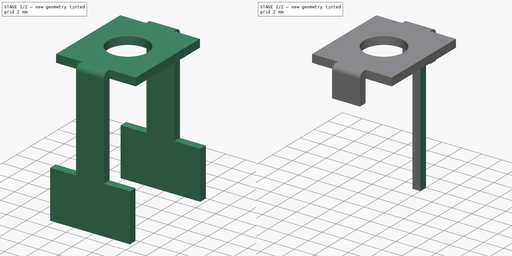
[diagram: build sequence overview — one tinted view per stage of 2, left to right]
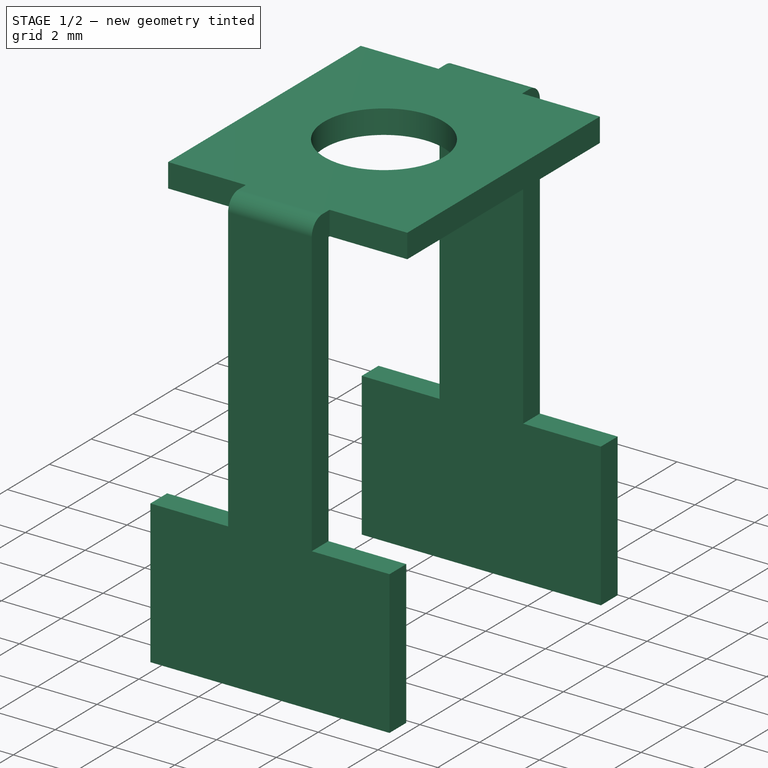
[diagram: stage 1 of 2 — iso view after this stage's code; geometry added in this stage tinted green]
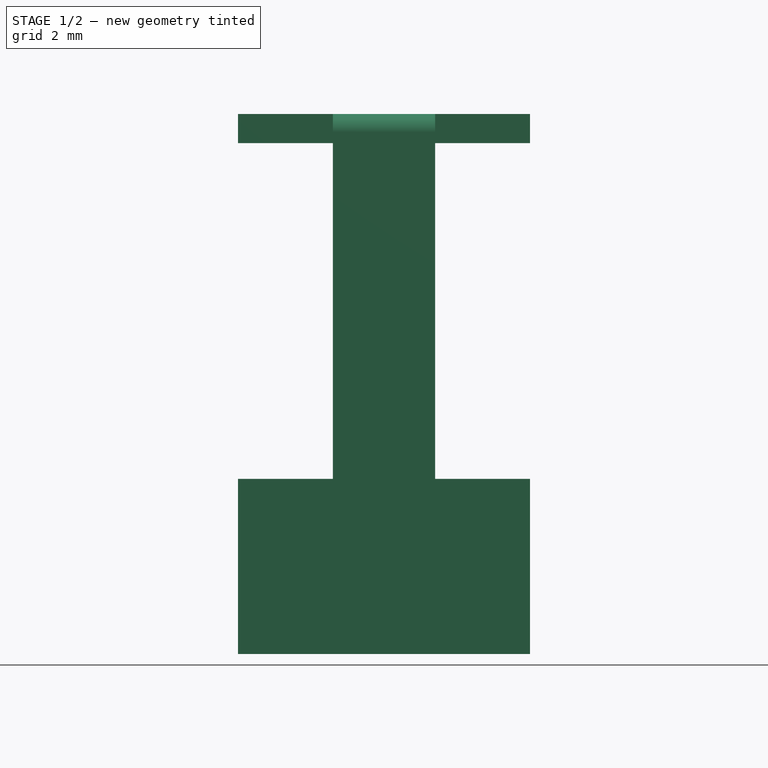
[diagram: stage 1 of 2 — front view after this stage's code; geometry added in this stage tinted green]
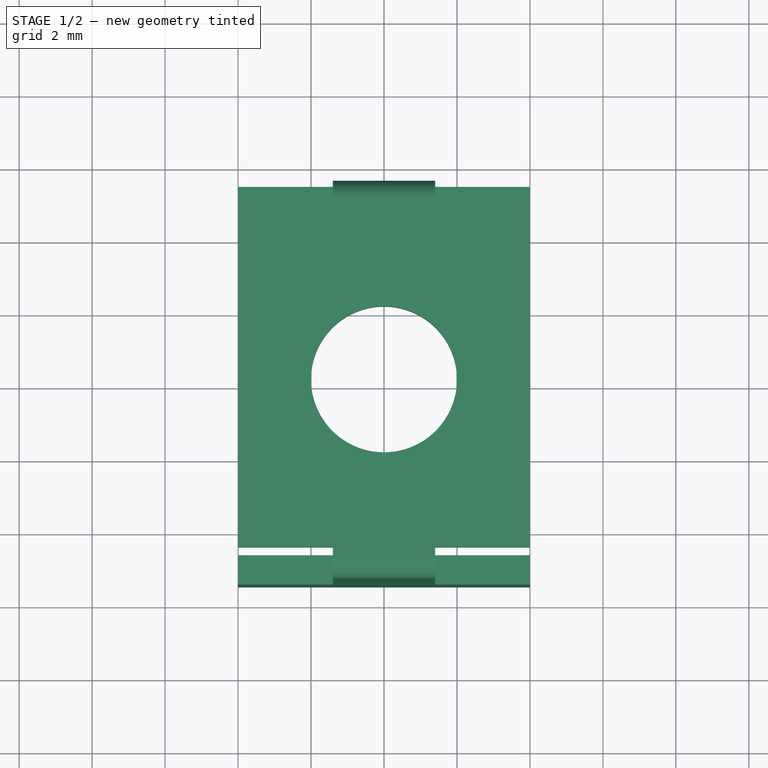
[diagram: stage 1 of 2 — top view after this stage's code; geometry added in this stage tinted green]
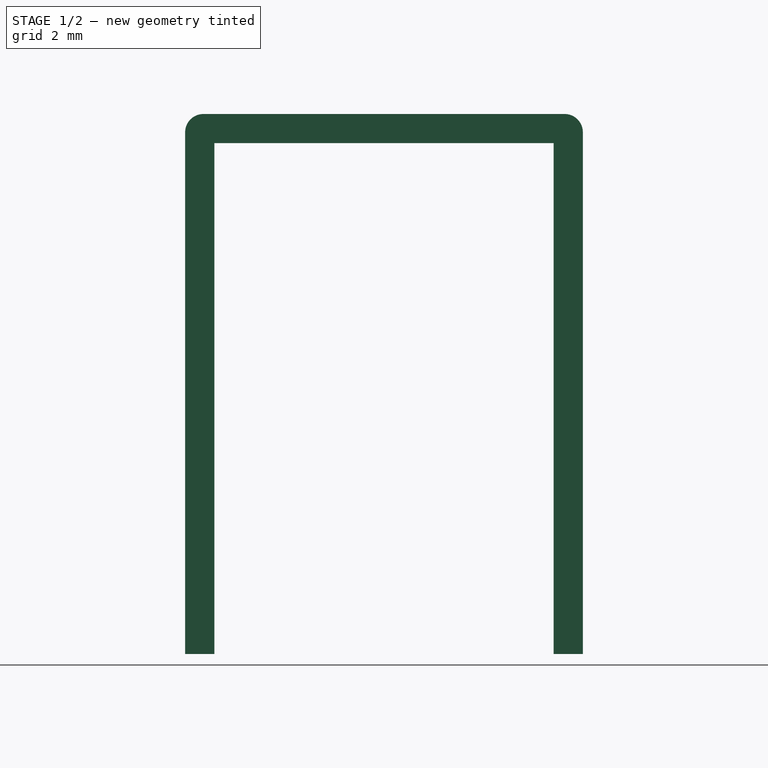
[diagram: stage 1 of 2 — right view after this stage's code; geometry added in this stage tinted green]
FCSTD DOCUMENT  (FreeCAD 0.19R23058 (Git))
Label: bottom_contact
License: All rights reserved
LicenseURL: http://en.wikipedia.org/wiki/All_rights_reserved
objects: Sketcher::SketchObject×4, PartDesign::Pocket×3, PartDesign::Line×3, PartDesign::Pad×1, PartDesign::Body×1
note: 16 computed .brp shape members not serialized (recipe doc carries the construction recipe); baked Part::Feature solids carry a one-line shape summary decoded from their .brp

FEATURE [Sketcher::SketchObject] Sketch
  MapMode = 5
  Placement = pos=(0,0,0) rot=(0.57735,0.57735,0.57735;2.0944rad)
  Support = -> [YZ_Plane]
  sketch-geometry (12):
    g0: LineSegment StartX=-5.45 StartY=-14.8 StartZ=0 EndX=-5.45 EndY=-0.5 EndZ=0
    g1: LineSegment StartX=-4.95 StartY=0 StartZ=0 EndX=4.95 EndY=0 EndZ=0
    g2: LineSegment StartX=5.45 StartY=-0.5 StartZ=0 EndX=5.45 EndY=-14.8 EndZ=0
    g3: LineSegment StartX=5.45 StartY=-14.8 StartZ=0 EndX=4.65 EndY=-14.8 EndZ=0
    g4: LineSegment StartX=4.65 StartY=-14.8 StartZ=0 EndX=4.65 EndY=-0.8 EndZ=0
    g5: LineSegment StartX=4.65 StartY=-0.8 StartZ=0 EndX=-4.65 EndY=-0.8 EndZ=0
    g6: LineSegment StartX=-4.65 StartY=-0.8 StartZ=0 EndX=-4.65 EndY=-14.8 EndZ=0
    g7: LineSegment StartX=-4.65 StartY=-14.8 StartZ=0 EndX=-5.45 EndY=-14.8 EndZ=0
    g8: ArcOfCircle CenterX=-4.95 CenterY=-0.5 CenterZ=0 NormalX=0 NormalY=0 NormalZ=1 AngleXU=0 Radius=0.5 StartAngle=1.5708 EndAngle=3.14159
    g9: ArcOfCircle CenterX=4.95 CenterY=-0.5 CenterZ=0 NormalX=0 NormalY=0 NormalZ=1 AngleXU=0 Radius=0.5 StartAngle=0 EndAngle=1.5708
    g10: LineSegment [constr] StartX=-4.95 StartY=-0.5 StartZ=0 EndX=-4.65 EndY=-0.8 EndZ=0
    g11: LineSegment [constr] StartX=4.65 StartY=-0.8 StartZ=0 EndX=4.95 EndY=-0.5 EndZ=0
  constraints (31):
    c: Vertical(g0)
    c: Vertical(g2)
    c: Coincident(g2,g3)
    c: Coincident(g3,g4)
    c: Vertical(g4)
    c: Coincident(g4,g5)
    c: Horizontal(g5)
    c: Coincident(g5,g6)
    c: Vertical(g6)
    c: Coincident(g6,g7)
    c: Coincident(g7,g0)
    c: Horizontal(g7)
    c: Horizontal(g3)
    c: DistanceX(g7,g7) = 0.8
    c: DistanceX(g5,g5) = 9.3
    c: DistanceY(g4,g4) = 14
    c: Equal(g4,g6)
    c: Tangent(g0,g8) = 1.5708
    c: Tangent(g1,g8) = 1.5708
    c: Tangent(g1,g9) = 1.5708
    c: Tangent(g2,g9) = 1.5708
    c: Equal(g8,g9)
    c: PointOnObject(g1,g-1)
    c: Symmetric(g1,g1,g-2)
    c: Radius(g8) = 0.5
    c: Coincident(g10,g8)
    c: Coincident(g10,g5)
    c: Coincident(g11,g4)
    c: Coincident(g11,g9)
    c: Angle(g5,g10) = 2.35619
    c: Equal(g10,g11)
FEATURE [PartDesign::Pad] Pad
  Direction = (1,1,1)
  Length = 8
  Length2 = 100
  Midplane = true
  Placement = pos=(0,0,0) rot=(0.57735,0.57735,0.57735;2.0944rad)
  Profile = -> Sketch
  Type = 0
FEATURE [Sketcher::SketchObject] Sketch001
  ExternalGeometry = -> [Pad]
  MapMode = 5
  Placement = pos=(0,0,0) rot=(0,0,-1;1.5708rad)
  Support = -> [Pad]
  sketch-geometry (21):
    g0: Circle CenterX=0 CenterY=0 CenterZ=0 NormalX=0 NormalY=0 NormalZ=1 AngleXU=0 Radius=2
    g1: LineSegment StartX=-5.45 StartY=4 StartZ=0 EndX=-4.6 EndY=4 EndZ=0
    g2: LineSegment StartX=-4.6 StartY=4 StartZ=0 EndX=-4.6 EndY=1.4 EndZ=0
    g3: LineSegment StartX=-4.6 StartY=1.4 StartZ=0 EndX=-5.45 EndY=1.4 EndZ=0
    g4: LineSegment StartX=-5.45 StartY=1.4 StartZ=0 EndX=-5.45 EndY=4 EndZ=0
    g5: LineSegment StartX=-5.45 StartY=-1.4 StartZ=0 EndX=-4.6 EndY=-1.4 EndZ=0
    g6: LineSegment StartX=-4.6 StartY=-1.4 StartZ=0 EndX=-4.6 EndY=-4 EndZ=0
    g7: LineSegment StartX=-4.6 StartY=-4 StartZ=0 EndX=-5.45 EndY=-4 EndZ=0
    g8: LineSegment StartX=-5.45 StartY=-4 StartZ=0 EndX=-5.45 EndY=-1.4 EndZ=0
    g9: LineSegment StartX=4.6 StartY=4 StartZ=0 EndX=5.45 EndY=4 EndZ=0
    g10: LineSegment StartX=5.45 StartY=4 StartZ=0 EndX=5.45 EndY=1.4 EndZ=0
    g11: LineSegment StartX=5.45 StartY=1.4 StartZ=0 EndX=4.6 EndY=1.4 EndZ=0
    g12: LineSegment StartX=4.6 StartY=1.4 StartZ=0 EndX=4.6 EndY=4 EndZ=0
    g13: LineSegment StartX=4.6 StartY=-1.4 StartZ=0 EndX=5.45 EndY=-1.4 EndZ=0
    g14: LineSegment StartX=5.45 StartY=-1.4 StartZ=0 EndX=5.45 EndY=-4 EndZ=0
    g15: LineSegment StartX=5.45 StartY=-4 StartZ=0 EndX=4.6 EndY=-4 EndZ=0
    g16: LineSegment StartX=4.6 StartY=-4 StartZ=0 EndX=4.6 EndY=-1.4 EndZ=0
    g17: LineSegment [constr] StartX=-4.6 StartY=1.4 StartZ=0 EndX=4.6 EndY=1.4 EndZ=0
    g18: LineSegment [constr] StartX=4.6 StartY=1.4 StartZ=0 EndX=4.6 EndY=-1.4 EndZ=0
    g19: LineSegment [constr] StartX=4.6 StartY=-1.4 StartZ=0 EndX=-4.6 EndY=-1.4 EndZ=0
    g20: LineSegment [constr] StartX=-4.6 StartY=-1.4 StartZ=0 EndX=-4.6 EndY=1.4 EndZ=0
  constraints (55):
    c: Coincident(g0,g-1)
    c: Radius(g0) = 2
    c: Coincident(g1,g2)
    c: Coincident(g2,g3)
    c: Coincident(g3,g4)
    c: Coincident(g4,g1)
    c: Horizontal(g1)
    c: Horizontal(g3)
    c: Vertical(g2)
    c: Vertical(g4)
    c: Coincident(g5,g6)
    c: Coincident(g6,g7)
    c: Coincident(g7,g8)
    c: Coincident(g8,g5)
    c: Horizontal(g5)
    c: Horizontal(g7)
    c: Vertical(g6)
    c: Vertical(g8)
    c: Coincident(g9,g10)
    c: Coincident(g10,g11)
    c: Coincident(g11,g12)
    c: Coincident(g12,g9)
    c: Horizontal(g9)
    c: Horizontal(g11)
    c: Vertical(g10)
    c: Vertical(g12)
    c: Coincident(g13,g14)
    c: Coincident(g14,g15)
    c: Coincident(g15,g16)
    c: Coincident(g16,g13)
    c: Horizontal(g13)
    c: Horizontal(g15)
    c: Vertical(g14)
    c: Vertical(g16)
    c: Coincident(g17,g18)
    c: Coincident(g18,g19)
    c: Coincident(g19,g20)
    c: Coincident(g20,g17)
    c: Horizontal(g19)
    c: Vertical(g18)
    c: Coincident(g17,g2)
    c: Coincident(g18,g13)
    c: Coincident(g17,g11)
    c: Coincident(g5,g19)
    c: Symmetric(g2,g11,g-2)
    c: Symmetric(g2,g5,g-1)
    c: DistanceY(g20,g20) = 2.8
    c: DistanceX(g17,g17) = 9.2
    c: Equal(g3,g5)
    c: Equal(g5,g13)
    c: Equal(g13,g11)
    c: Equal(g2,g12)
    c: Equal(g12,g16)
    c: Equal(g16,g6)
    c: Coincident(g1,g-3)
FEATURE [PartDesign::Pocket] Pocket
  BaseFeature = -> Pad
  Length = 10
  Length2 = 100
  Placement = pos=(0,0,0) rot=(0.57735,0.57735,0.57735;2.0944rad)
  Profile = -> Sketch001
  Type = 0
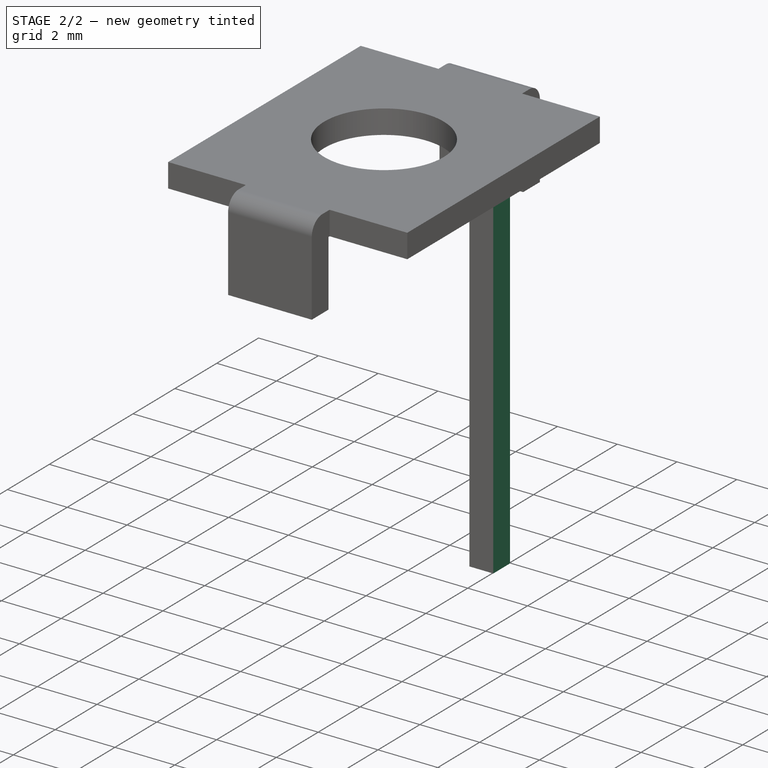
[diagram: stage 2 of 2 — iso view after this stage's code; geometry added in this stage tinted green]
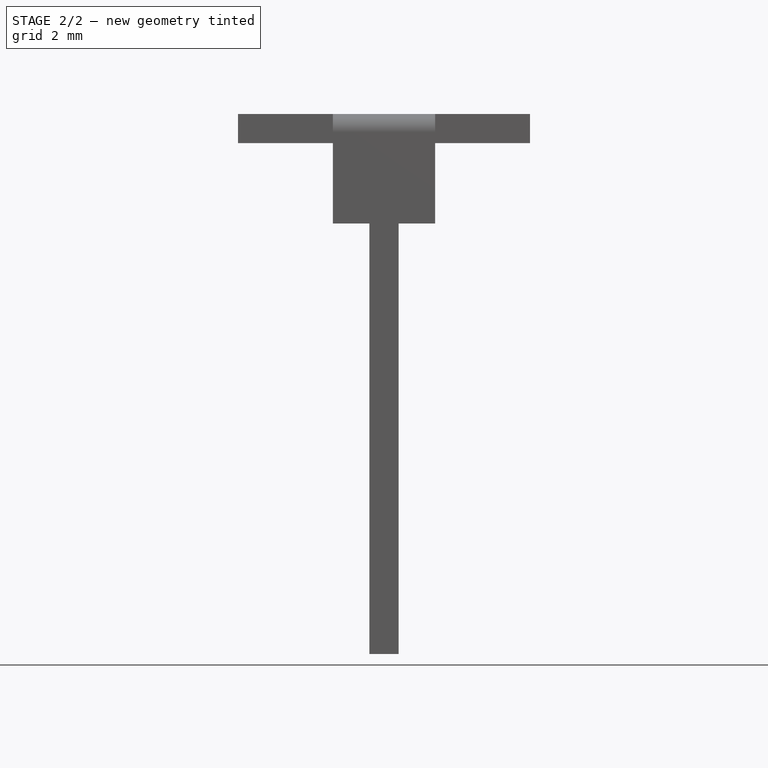
[diagram: stage 2 of 2 — front view after this stage's code; geometry added in this stage tinted green]
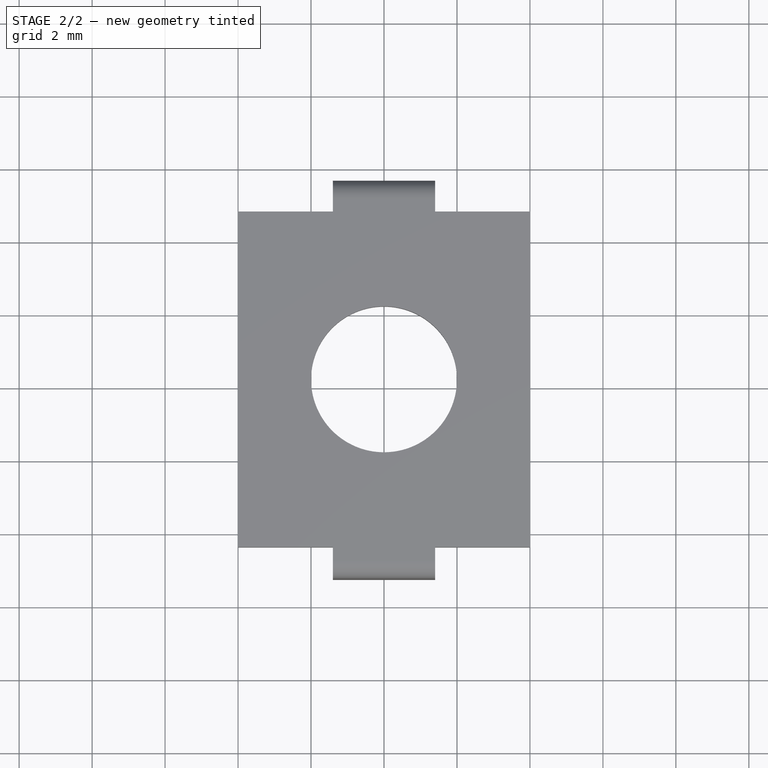
[diagram: stage 2 of 2 — top view after this stage's code; geometry added in this stage tinted green]
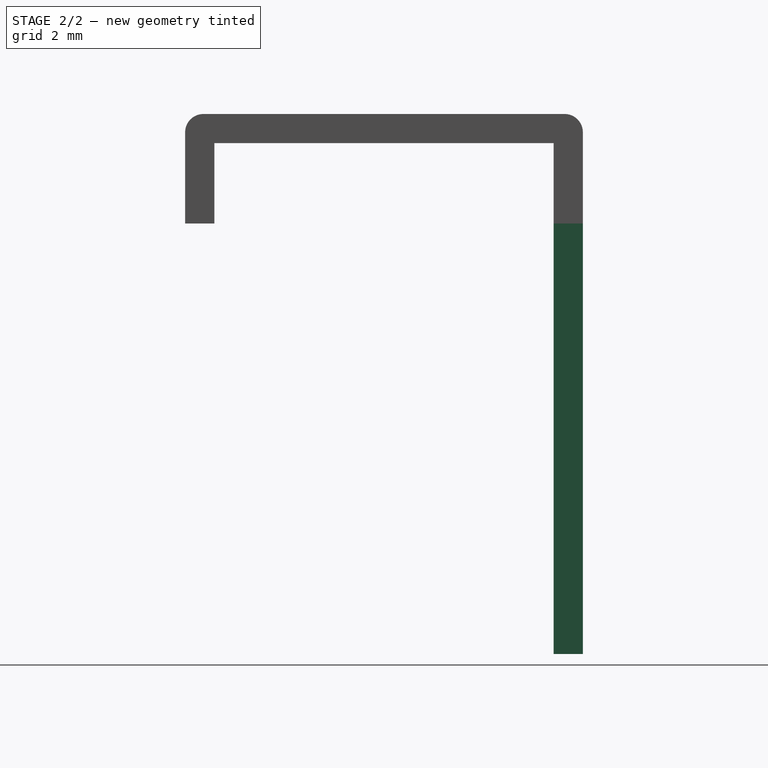
[diagram: stage 2 of 2 — right view after this stage's code; geometry added in this stage tinted green]
FEATURE [Sketcher::SketchObject] Sketch002
  ExternalGeometry = -> [Pocket]
  MapMode = 5
  Placement = pos=(-2.4e-15,-5.45,1.2e-15) rot=(-0.57735,-0.57735,0.57735;4.18879rad)
  Support = -> [Pocket]
  sketch-geometry (10):
    g0: LineSegment StartX=3 StartY=4 StartZ=0 EndX=14.8 EndY=4 EndZ=0
    g1: LineSegment StartX=14.8 StartY=4 StartZ=0 EndX=14.8 EndY=0.4 EndZ=0
    g2: LineSegment StartX=14.8 StartY=0.4 StartZ=0 EndX=3 EndY=0.4 EndZ=0
    g3: LineSegment StartX=3 StartY=0.4 StartZ=0 EndX=3 EndY=4 EndZ=0
    g4: LineSegment StartX=3 StartY=-0.4 StartZ=0 EndX=14.8 EndY=-0.4 EndZ=0
    g5: LineSegment StartX=14.8 StartY=-0.4 StartZ=0 EndX=14.8 EndY=-4 EndZ=0
    g6: LineSegment StartX=14.8 StartY=-4 StartZ=0 EndX=3 EndY=-4 EndZ=0
    g7: LineSegment StartX=3 StartY=-4 StartZ=0 EndX=3 EndY=-0.4 EndZ=0
    g8: LineSegment [constr] StartX=3 StartY=0.4 StartZ=0 EndX=3 EndY=-0.4 EndZ=0
    g9: LineSegment [constr] StartX=14.8 StartY=0.4 StartZ=0 EndX=14.8 EndY=-0.4 EndZ=0
  constraints (26):
    c: Coincident(g0,g1)
    c: Coincident(g1,g2)
    c: Coincident(g2,g3)
    c: Coincident(g3,g0)
    c: Horizontal(g0)
    c: Horizontal(g2)
    c: Vertical(g1)
    c: Vertical(g3)
    c: Coincident(g4,g5)
    c: Coincident(g5,g6)
    c: Coincident(g6,g7)
    c: Coincident(g7,g4)
    c: Horizontal(g4)
    c: Horizontal(g6)
    c: Vertical(g5)
    c: Vertical(g7)
    c: Coincident(g8,g2)
    c: Coincident(g8,g4)
    c: Symmetric(g4,g2,g-1)
    c: Coincident(g9,g1)
    c: Coincident(g9,g4)
    c: Vertical(g9)
    c: DistanceY(g9,g9) = 0.8
    c: Equal(g1,g5)
    c: Coincident(g-3,g0)
    c: DistanceX(g-1,g0) = 3
FEATURE [PartDesign::Pocket] Pocket001
  BaseFeature = -> Pocket
  Length = 15
  Length2 = 100
  Placement = pos=(0,0,0) rot=(0.57735,0.57735,0.57735;2.0944rad)
  Profile = -> Sketch002
  Type = 0
FEATURE [Sketcher::SketchObject] Sketch003
  ExternalGeometry = -> [Pocket001]
  MapMode = 5
  Placement = pos=(-2.4e-15,-5.45,1.2e-15) rot=(-0.57735,-0.57735,0.57735;4.18879rad)
  Support = -> [Pocket001]
  sketch-geometry (4):
    g0: LineSegment StartX=3 StartY=0.4 StartZ=0 EndX=14.8 EndY=0.4 EndZ=0
    g1: LineSegment StartX=14.8 StartY=0.4 StartZ=0 EndX=14.8 EndY=-0.4 EndZ=0
    g2: LineSegment StartX=14.8 StartY=-0.4 StartZ=0 EndX=3 EndY=-0.4 EndZ=0
    g3: LineSegment StartX=3 StartY=-0.4 StartZ=0 EndX=3 EndY=0.4 EndZ=0
  constraints (10):
    c: Coincident(g0,g1)
    c: Coincident(g1,g2)
    c: Coincident(g2,g3)
    c: Coincident(g3,g0)
    c: Horizontal(g0)
    c: Horizontal(g2)
    c: Vertical(g1)
    c: Vertical(g3)
    c: Coincident(g0,g-3)
    c: Coincident(g1,g-4)
FEATURE [PartDesign::Pocket] Pocket002
  BaseFeature = -> Pocket001
  Length = 5
  Length2 = 100
  Placement = pos=(0,0,0) rot=(0.57735,0.57735,0.57735;2.0944rad)
  Profile = -> Sketch003
  Type = 0
FEATURE [PartDesign::Line] HoleAxis_1  label="Screw_F"
  AttacherType = Attacher::AttachEngineLine
  Length = 5.63627
  MapMode = 19
  Placement = pos=(0,0,0) rot=(0,0,-1;1.5708rad)
  ResizeMode = 1
  Support = -> [Pocket002]
FEATURE [PartDesign::Line] HoleAxis_2  label="Screw_R"
  AttacherType = Attacher::AttachEngineLine
  Length = 5.63627
  MapMode = 19
  Placement = pos=(3e-16,-4e-16,-0.8) rot=(0,0,-1;1.5708rad)
  ResizeMode = 1
  Support = -> [Pocket002]
FEATURE [PartDesign::Line] Contact
  AttacherType = Attacher::AttachEngineLine
  AttachmentOffset = pos=(0,0,-9.3) rot=(0,0,1;0rad)
  Length = 1
  MapMode = 42
  Placement = pos=(-3.4e-15,5.05,-9.3) rot=(0,0,1;0rad)
  ResizeMode = 1
  Support = -> [Pocket002]
FEATURE [PartDesign::Body] Body
  Group = -> [Sketch,Pad,Sketch001,Pocket,Sketch002,Pocket001,Sketch003,Pocket002,HoleAxis_1,HoleAxis_2,Contact]
  Origin = -> Origin
  Tip = -> Pocket002
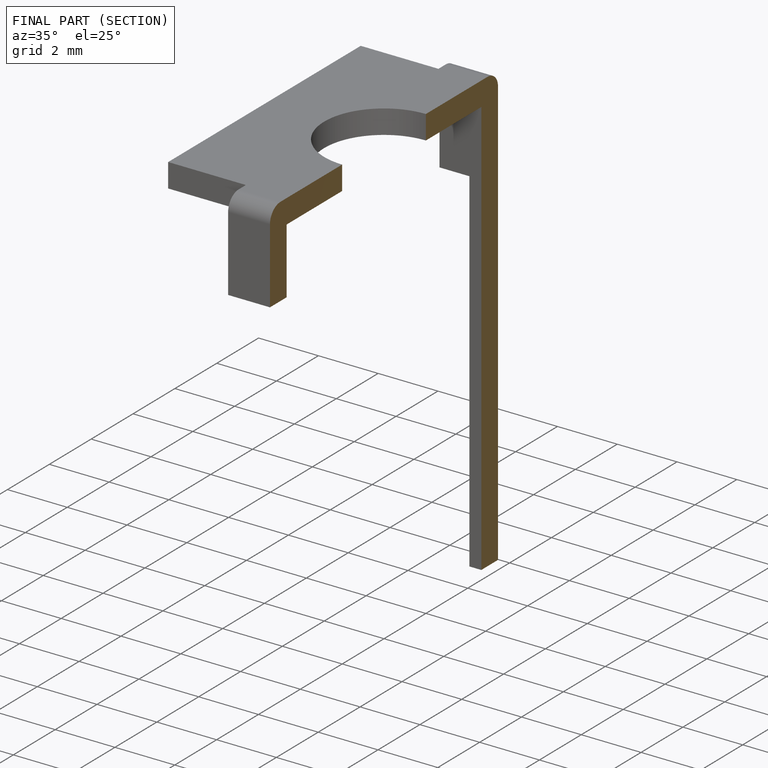
[diagram: finished part — half-section view (interior)]
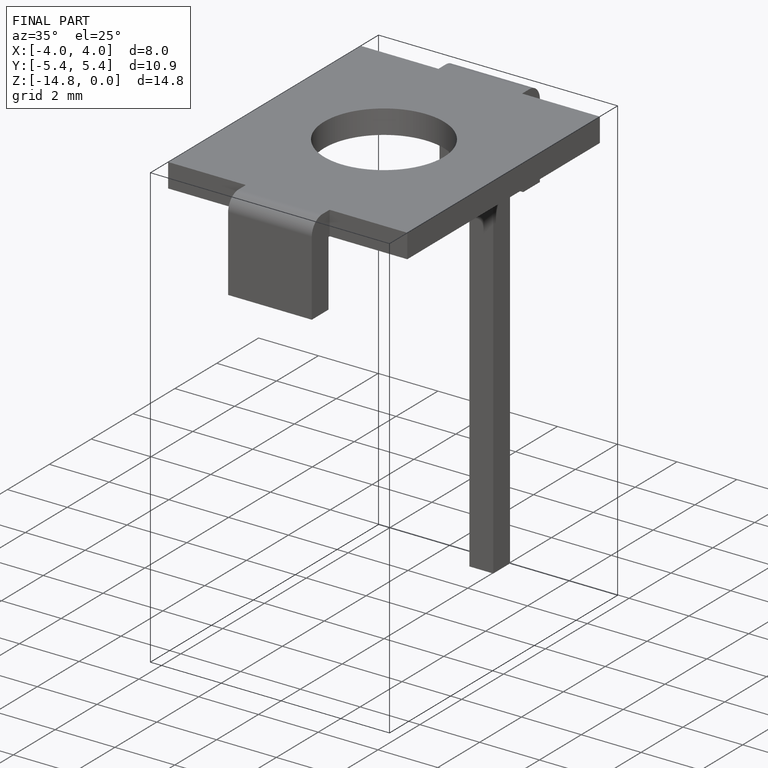
[diagram: finished part — iso view with bounding-box wireframe]
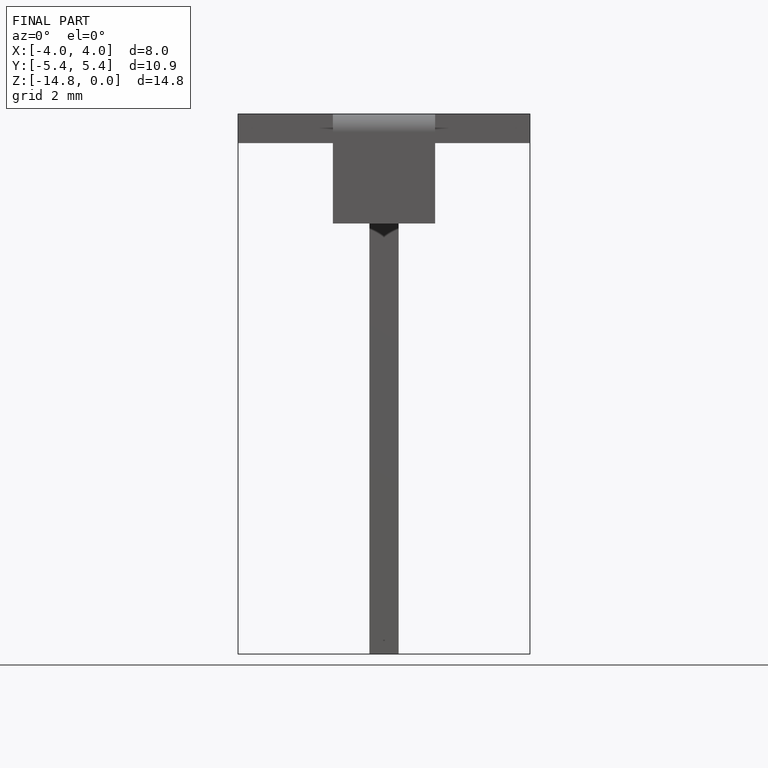
[diagram: finished part — front view with bounding-box wireframe]
